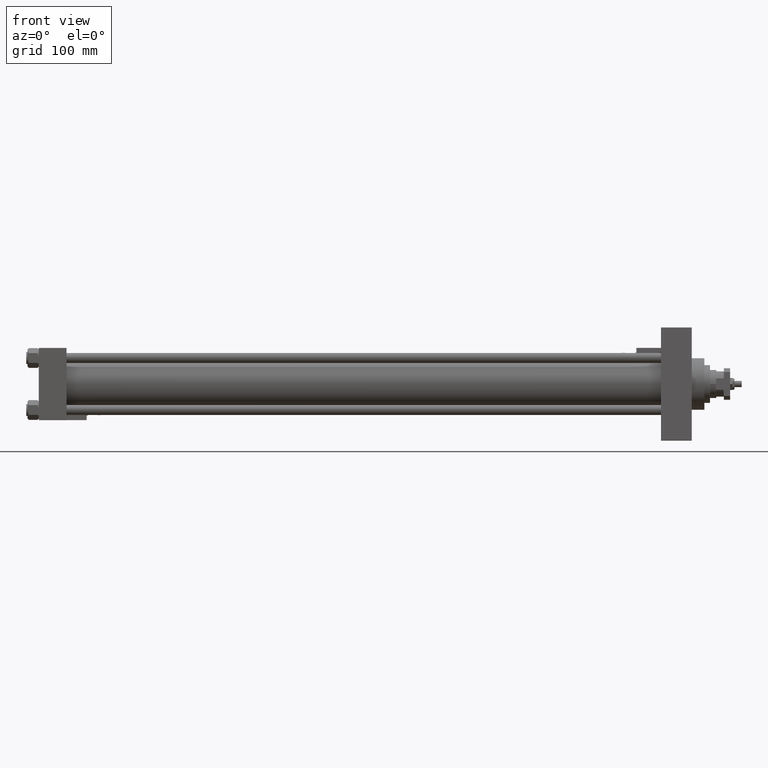
[diagram: clean part render]
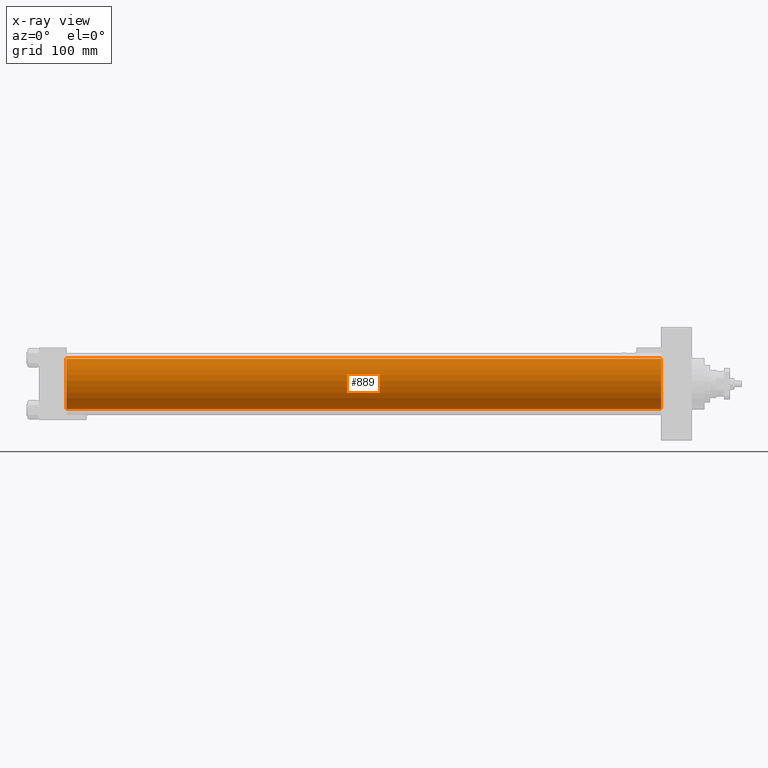
[diagram: x-ray — body ghosted, one internal face saturated and labeled with its STEP entity id]
A machine part, front view, then the same camera in x-ray: the body is ghosted and one INTERNAL B-rep face — a face not visible from any outside direction — is saturated and labeled: STEP entity #889.
In plain terms, the highlighted cylindrical surface (edge-blend (fillet) strip) has radius 40 mm, axis along (-1, -0, -0).
Its self-contained STEP definition (entity closure, byte-faithful):
#889 = ADVANCED_FACE ( 'NONE', ( #4580 ), #12722, .F. ) ;
#1228 = EDGE_CURVE ( 'NONE', #24884, #45463, #25293, .T. ) ;
#2836 = DIRECTION ( 'NONE',  ( 0.000000000000000000, 0.000000000000000000, -1.000000000000000000 ) ) ;
#2849 = CARTESIAN_POINT ( 'NONE',  ( 44.00000000000000000, -2.602085213965210642E-15, 40.00000000000000000 ) ) ;
#4307 = CARTESIAN_POINT ( 'NONE',  ( 44.00000000000000000, -2.602085213965210642E-15, 0.000000000000000000 ) ) ;
#4580 = FACE_OUTER_BOUND ( 'NONE', #51555, .T. ) ;
#4785 = DIRECTION ( 'NONE',  ( -1.000000000000000000, -0.000000000000000000, -0.000000000000000000 ) ) ;
#5331 = CIRCLE ( 'NONE', #15187, 40.00000000000000000 ) ;
#6195 = VERTEX_POINT ( 'NONE', #20254 ) ;
#8170 = CARTESIAN_POINT ( 'NONE',  ( 989.0000000000000000, -2.602085213965210642E-15, 0.000000000000000000 ) ) ;
#9348 = ORIENTED_EDGE ( 'NONE', *, *, #44454, .T. ) ;
#11877 = EDGE_CURVE ( 'NONE', #45463, #30659, #31193, .T. ) ;
#12722 = CYLINDRICAL_SURFACE ( 'NONE', #41616, 40.00000000000000000 ) ;
#15187 = AXIS2_PLACEMENT_3D ( 'NONE', #8170, #54767, #2836 ) ;
#20254 = CARTESIAN_POINT ( 'NONE',  ( 989.0000000000000000, 2.296501982624201990E-15, -40.00000000000000000 ) ) ;
#20888 = VECTOR ( 'NONE', #46228, 1000.000000000000000 ) ;
#21427 = DIRECTION ( 'NONE',  ( -1.000000000000000000, -0.000000000000000000, -0.000000000000000000 ) ) ;
#22186 = CARTESIAN_POINT ( 'NONE',  ( 989.0000000000000000, -2.602085213965210642E-15, 40.00000000000000000 ) ) ;
#24884 = VERTEX_POINT ( 'NONE', #27033 ) ;
#25144 = CARTESIAN_POINT ( 'NONE',  ( 989.0000000000000000, 2.296501982624201990E-15, -40.00000000000000000 ) ) ;
#25293 = LINE ( 'NONE', #22186, #55058 ) ;
#25528 = ORIENTED_EDGE ( 'NONE', *, *, #53956, .T. ) ;
#27033 = CARTESIAN_POINT ( 'NONE',  ( 989.0000000000000000, -2.602085213965210642E-15, 40.00000000000000000 ) ) ;
#29856 = CARTESIAN_POINT ( 'NONE',  ( 989.0000000000000000, -2.602085213965210642E-15, 0.000000000000000000 ) ) ;
#30659 = VERTEX_POINT ( 'NONE', #45101 ) ;
#30679 = DIRECTION ( 'NONE',  ( 1.000000000000000000, 0.000000000000000000, 0.000000000000000000 ) ) ;
#31193 = CIRCLE ( 'NONE', #34757, 40.00000000000000000 ) ;
#34757 = AXIS2_PLACEMENT_3D ( 'NONE', #4307, #30679, #47258 ) ;
#41616 = AXIS2_PLACEMENT_3D ( 'NONE', #29856, #21427, #47255 ) ;
#44454 = EDGE_CURVE ( 'NONE', #24884, #6195, #5331, .T. ) ;
#45101 = CARTESIAN_POINT ( 'NONE',  ( 44.00000000000000000, 2.296501982624201990E-15, -40.00000000000000000 ) ) ;
#45463 = VERTEX_POINT ( 'NONE', #2849 ) ;
#45493 = ORIENTED_EDGE ( 'NONE', *, *, #1228, .F. ) ;
#46228 = DIRECTION ( 'NONE',  ( -1.000000000000000000, -0.000000000000000000, -0.000000000000000000 ) ) ;
#47125 = ORIENTED_EDGE ( 'NONE', *, *, #11877, .F. ) ;
#47255 = DIRECTION ( 'NONE',  ( 0.000000000000000000, 0.000000000000000000, 1.000000000000000000 ) ) ;
#47258 = DIRECTION ( 'NONE',  ( 0.000000000000000000, 0.000000000000000000, -1.000000000000000000 ) ) ;
#51555 = EDGE_LOOP ( 'NONE', ( #9348, #25528, #47125, #45493 ) ) ;
#53956 = EDGE_CURVE ( 'NONE', #6195, #30659, #54923, .T. ) ;
#54767 = DIRECTION ( 'NONE',  ( 1.000000000000000000, 0.000000000000000000, 0.000000000000000000 ) ) ;
#54923 = LINE ( 'NONE', #25144, #20888 ) ;
#55058 = VECTOR ( 'NONE', #4785, 1000.000000000000000 ) ;